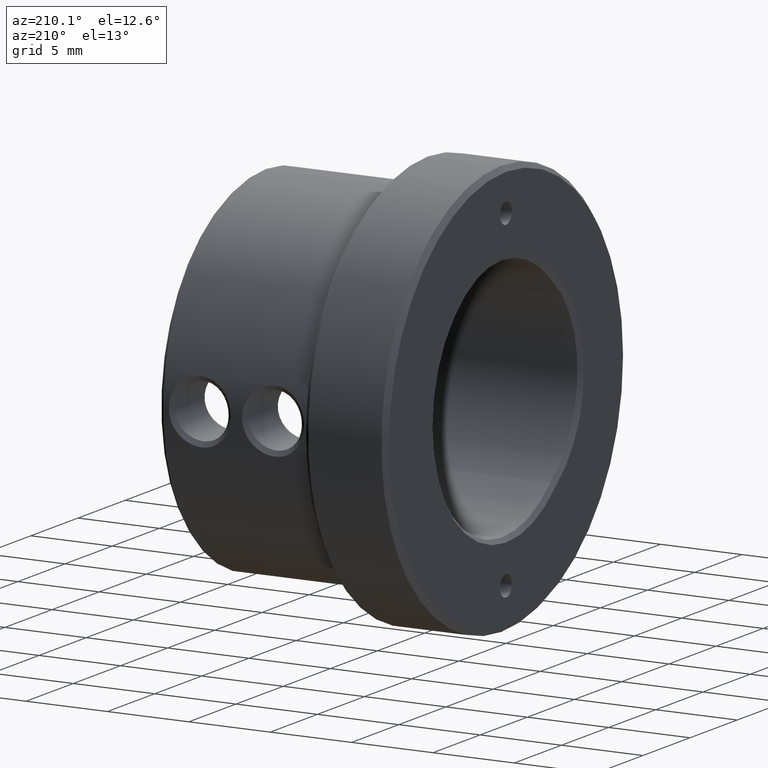
[diagram: clean part render]
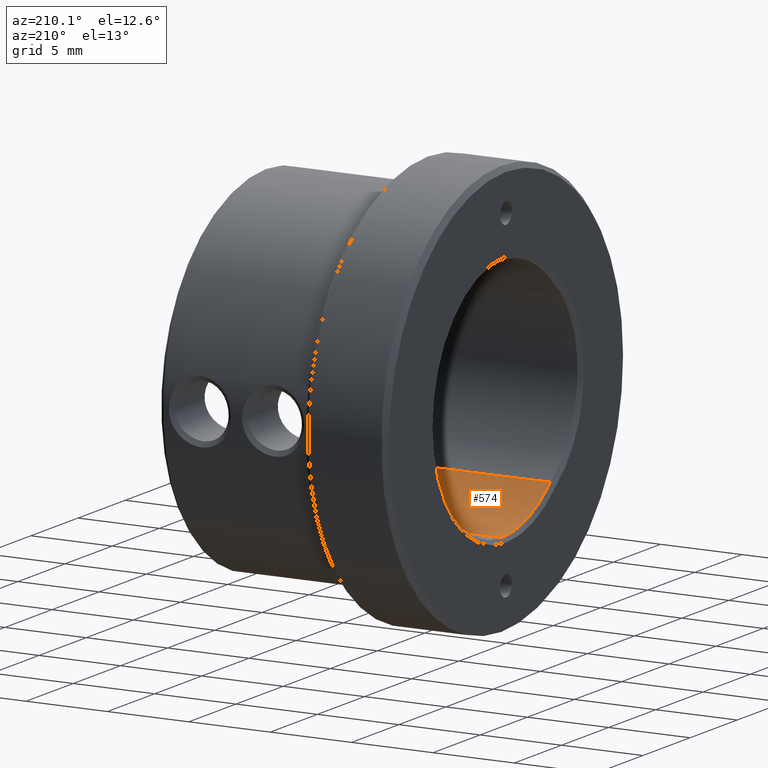
[diagram: same view with one face highlighted and labeled with its STEP entity id]
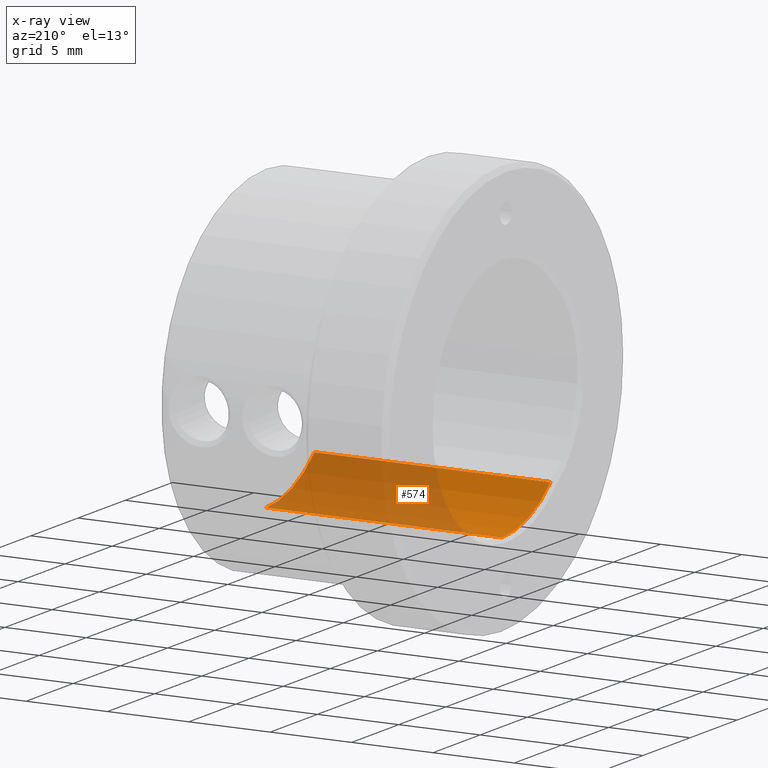
[diagram: x-ray of the same camera — body ghosted, the highlighted face saturated]
A machine part, auxiliary view. The second image highlights one B-rep face of the part: STEP entity #574.
The next image is the same camera in x-ray: the body ghosted, the highlighted face saturated — about 64% of this face is hidden behind the body in this view.
In plain terms, the highlighted cylindrical surface (partial cylindrical patch) has radius 7.55 mm, axis along (-1, -0, -0).
Its self-contained STEP definition (entity closure, byte-faithful):
#101 = CARTESIAN_POINT ( 'NONE',  ( 15.00000000000000000, 0.0000000000000000000, 0.0000000000000000000 ) ) ;
#166 = DIRECTION ( 'NONE',  ( 0.0000000000000000000, 0.0000000000000000000, 1.000000000000000000 ) ) ;
#574 = ADVANCED_FACE ( 'NONE', ( #1991 ), #2290, .F. ) ;
#749 = AXIS2_PLACEMENT_3D ( 'NONE', #3939, #2968, #832 ) ;
#759 = VECTOR ( 'NONE', #2616, 1000.000000000000000 ) ;
#831 = CARTESIAN_POINT ( 'NONE',  ( 0.2499999999999967500, 9.246083333562516700E-016, -7.549999999999999800 ) ) ;
#832 = DIRECTION ( 'NONE',  ( 0.0000000000000000000, 0.0000000000000000000, -1.000000000000000000 ) ) ;
#868 = ORIENTED_EDGE ( 'NONE', *, *, #3150, .T. ) ;
#982 = EDGE_CURVE ( 'NONE', #3761, #3773, #2622, .T. ) ;
#1197 = LINE ( 'NONE', #2006, #759 ) ;
#1205 = LINE ( 'NONE', #2269, #1354 ) ;
#1274 = ORIENTED_EDGE ( 'NONE', *, *, #1348, .T. ) ;
#1348 = EDGE_CURVE ( 'NONE', #3474, #3761, #1205, .T. ) ;
#1354 = VECTOR ( 'NONE', #1964, 1000.000000000000000 ) ;
#1564 = EDGE_LOOP ( 'NONE', ( #868, #1274, #3877, #3984 ) ) ;
#1775 = CARTESIAN_POINT ( 'NONE',  ( 0.2499999999999967500, -5.138937007874015500, -5.531168631410804600 ) ) ;
#1964 = DIRECTION ( 'NONE',  ( -1.000000000000000000, -0.0000000000000000000, -0.0000000000000000000 ) ) ;
#1991 = FACE_OUTER_BOUND ( 'NONE', #1564, .T. ) ;
#2006 = CARTESIAN_POINT ( 'NONE',  ( 7.500000000000000000, -5.138937007874015500, -5.531168631410804600 ) ) ;
#2007 = AXIS2_PLACEMENT_3D ( 'NONE', #101, #3547, #166 ) ;
#2055 = VERTEX_POINT ( 'NONE', #3329 ) ;
#2079 = CIRCLE ( 'NONE', #2458, 7.549999999999999800 ) ;
#2269 = CARTESIAN_POINT ( 'NONE',  ( 15.00000000000000000, 9.246083333562516700E-016, -7.549999999999999800 ) ) ;
#2290 = CYLINDRICAL_SURFACE ( 'NONE', #2007, 7.549999999999999800 ) ;
#2458 = AXIS2_PLACEMENT_3D ( 'NONE', #3537, #3845, #3830 ) ;
#2616 = DIRECTION ( 'NONE',  ( 1.000000000000000000, 0.0000000000000000000, 0.0000000000000000000 ) ) ;
#2622 = CIRCLE ( 'NONE', #749, 7.549999999999999800 ) ;
#2644 = CARTESIAN_POINT ( 'NONE',  ( 14.75000000000000400, 9.246083333562516700E-016, -7.549999999999999800 ) ) ;
#2880 = EDGE_CURVE ( 'NONE', #3773, #2055, #1197, .T. ) ;
#2968 = DIRECTION ( 'NONE',  ( -1.000000000000000000, 0.0000000000000000000, 0.0000000000000000000 ) ) ;
#3150 = EDGE_CURVE ( 'NONE', #2055, #3474, #2079, .T. ) ;
#3329 = CARTESIAN_POINT ( 'NONE',  ( 14.75000000000000400, -5.138937007874015500, -5.531168631410804600 ) ) ;
#3474 = VERTEX_POINT ( 'NONE', #2644 ) ;
#3537 = CARTESIAN_POINT ( 'NONE',  ( 14.75000000000000400, 0.0000000000000000000, 0.0000000000000000000 ) ) ;
#3547 = DIRECTION ( 'NONE',  ( -1.000000000000000000, -0.0000000000000000000, -0.0000000000000000000 ) ) ;
#3761 = VERTEX_POINT ( 'NONE', #831 ) ;
#3773 = VERTEX_POINT ( 'NONE', #1775 ) ;
#3830 = DIRECTION ( 'NONE',  ( 0.0000000000000000000, 0.0000000000000000000, -1.000000000000000000 ) ) ;
#3845 = DIRECTION ( 'NONE',  ( 1.000000000000000000, -0.0000000000000000000, -0.0000000000000000000 ) ) ;
#3877 = ORIENTED_EDGE ( 'NONE', *, *, #982, .T. ) ;
#3939 = CARTESIAN_POINT ( 'NONE',  ( 0.2499999999999967500, 0.0000000000000000000, 0.0000000000000000000 ) ) ;
#3984 = ORIENTED_EDGE ( 'NONE', *, *, #2880, .T. ) ;